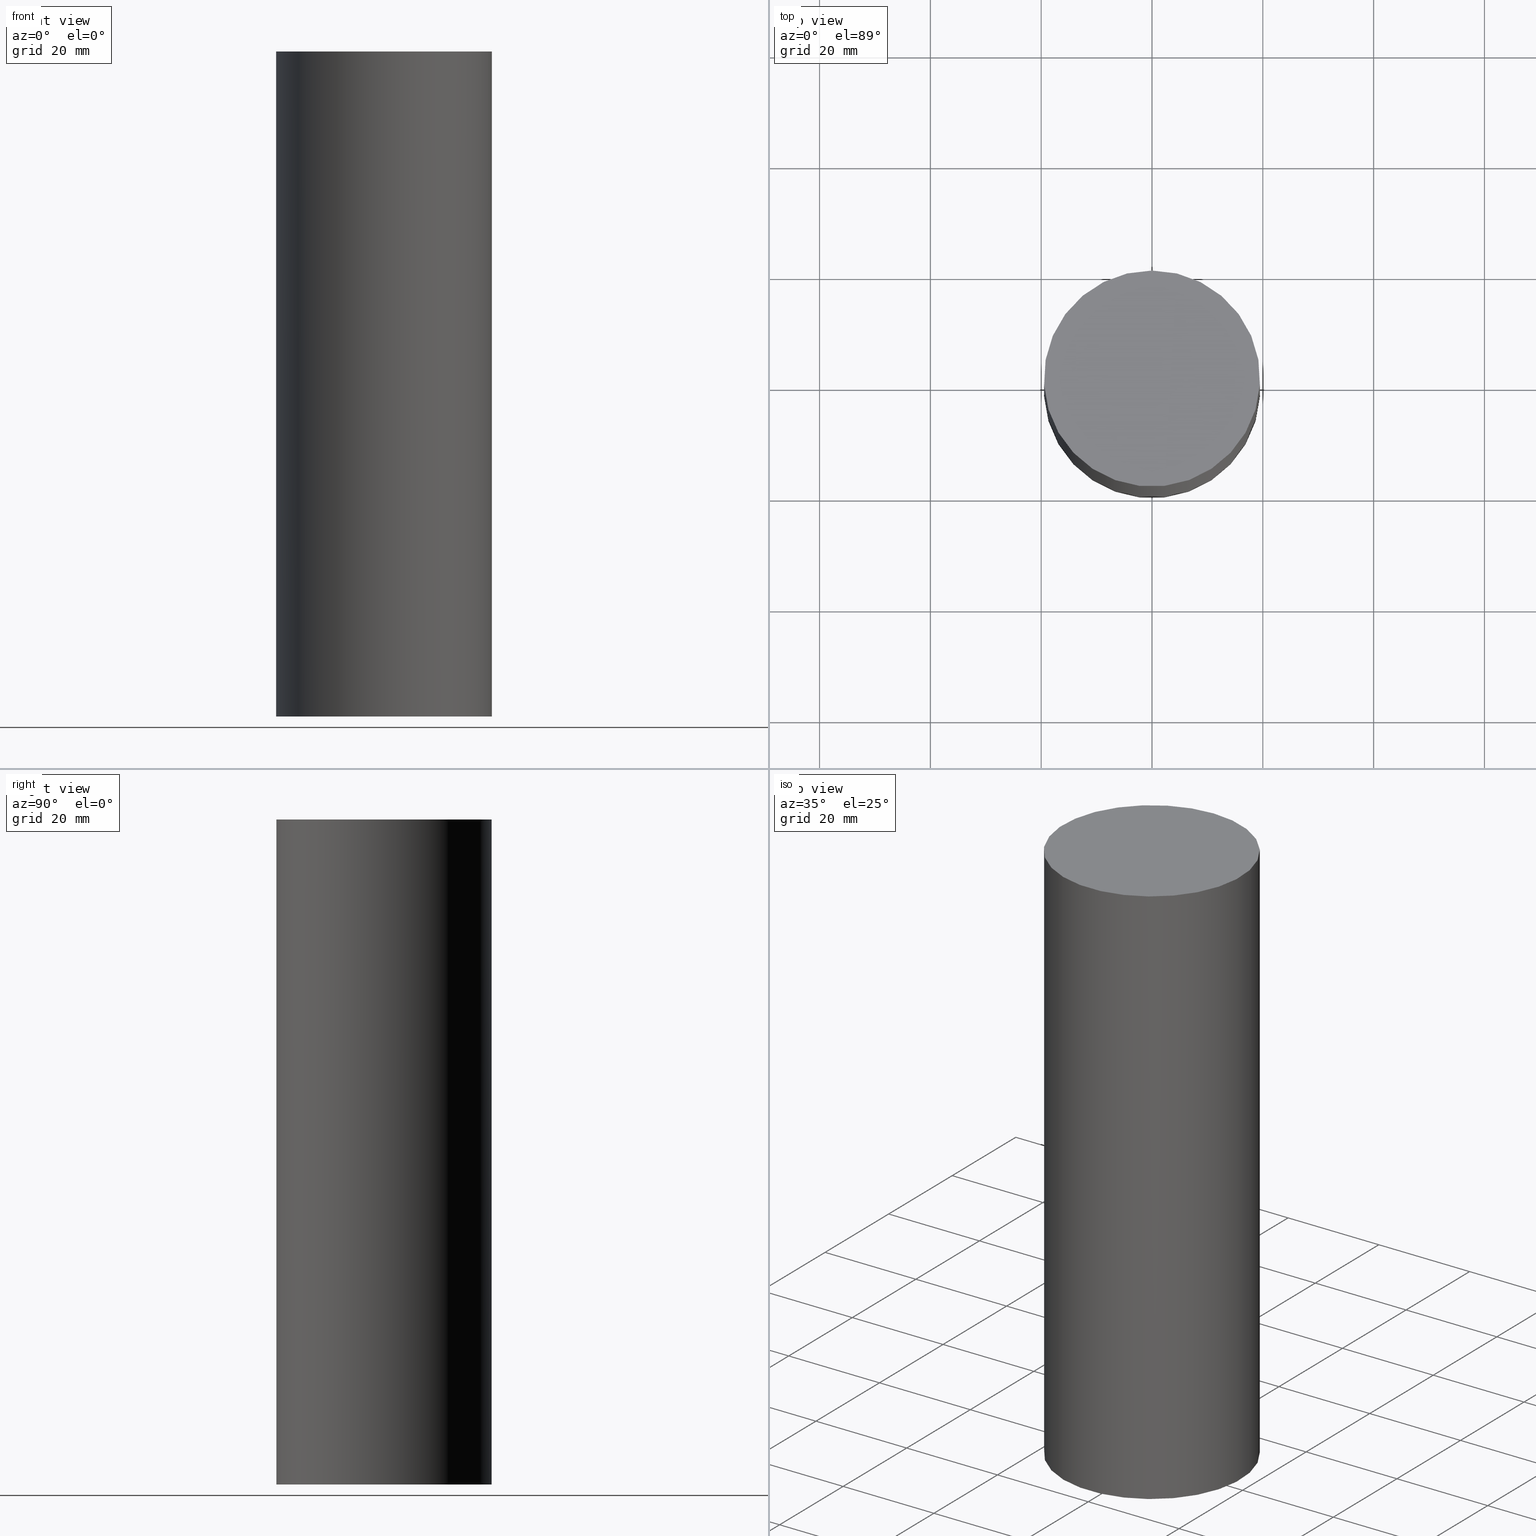
[diagram: canonical four-view strip — front | top / right | iso, engineering-drawing reading convention]
A machine part, canonical four-view strip (front | top / right | iso — engineering-drawing reading convention). The complete STEP part file that produces these views, byte-faithful:
ISO-10303-21;
HEADER;
FILE_DESCRIPTION((''),'1');
FILE_NAME('U:/Translate/11_3D_Field/02_Step_Field/21_CK\X2\30DC30FC30EA30F330B030B730B930C630E0\X0\/27_\X2\FF7DFF8FFF70FF84FF80FF9EFF9DFF8AFF9FFF70\X0\/CK44DP-120.stp','2013-07-29T07:13:53',(''),(''),'Spatial Interop R18','Kubotek KeyCreator V8.5.1 (14335)',' ');
FILE_SCHEMA(('CONFIG_CONTROL_DESIGN'));
ENDSEC;
DATA;
#1=DESIGN_CONTEXT('',#27,'design');
#2=APPLICATION_PROTOCOL_DEFINITION('INTERNATIONAL STANDARD','config_control_design',1994,#27);
#3=PRODUCT_CATEGORY_RELATIONSHIP('NONE','NONE',#28,#29);
#4=DATE_AND_TIME(#30,#31);
#5=DATE_TIME_ROLE('creation_date');
#6=DATE_TIME_ROLE('classification_date');
#7=PERSON_AND_ORGANIZATION_ROLE('creator');
#8=PERSON_AND_ORGANIZATION_ROLE('design_supplier');
#9=PERSON_AND_ORGANIZATION_ROLE('classification_officer');
#10=PERSON_AND_ORGANIZATION_ROLE('design_owner');
#11=APPROVAL_PERSON_ORGANIZATION(#32,#33,#34);
#12=APPROVAL_DATE_TIME(#4,#33);
#13=CC_DESIGN_APPROVAL(#33,(#35,#36,#37));
#14=CC_DESIGN_DATE_AND_TIME_ASSIGNMENT(#4,#5,(#37));
#15=CC_DESIGN_DATE_AND_TIME_ASSIGNMENT(#4,#6,(#35));
#16=CC_DESIGN_PERSON_AND_ORGANIZATION_ASSIGNMENT(#32,#10,(#38));
#17=CC_DESIGN_PERSON_AND_ORGANIZATION_ASSIGNMENT(#32,#7,(#37));
#18=CC_DESIGN_PERSON_AND_ORGANIZATION_ASSIGNMENT(#32,#7,(#36));
#19=CC_DESIGN_PERSON_AND_ORGANIZATION_ASSIGNMENT(#32,#8,(#36));
#20=CC_DESIGN_SECURITY_CLASSIFICATION(#35,(#36));
#21=CC_DESIGN_PERSON_AND_ORGANIZATION_ASSIGNMENT(#32,#9,(#35));
#22=SHAPE_DEFINITION_REPRESENTATION(#39,#40);
#23= (GEOMETRIC_REPRESENTATION_CONTEXT(3)GLOBAL_UNCERTAINTY_ASSIGNED_CONTEXT((#43))GLOBAL_UNIT_ASSIGNED_CONTEXT((#45,#46,#47))REPRESENTATION_CONTEXT('NONE','WORKSPACE'));
#27=APPLICATION_CONTEXT('CONFIGURATION CONTROLLED 3D DESIGNS OF MECHANICAL PARTS AND ASSEMBLIES');
#28=PRODUCT_CATEGORY('part','NONE');
#29=PRODUCT_RELATED_PRODUCT_CATEGORY('detail',' ',(#38));
#30=CALENDAR_DATE(2013,29,6);
#31=LOCAL_TIME(16,13,53.0,#49);
#32=PERSON_AND_ORGANIZATION(#50,#51);
#33=APPROVAL(#52,'SOLID MODEL');
#34=APPROVAL_ROLE('APPROVED');
#35=SECURITY_CLASSIFICATION('','',#53);
#36=PRODUCT_DEFINITION_FORMATION_WITH_SPECIFIED_SOURCE(' ','NONE',#38,.NOT_KNOWN.);
#37=PRODUCT_DEFINITION('NONE','NONE',#36,#1);
#38=PRODUCT('1','1','PART-1-DESC',(#54));
#39=PRODUCT_DEFINITION_SHAPE('NONE','NONE',#37);
#40=ADVANCED_BREP_SHAPE_REPRESENTATION('1',(#55,#56),#23);
#43=UNCERTAINTY_MEASURE_WITH_UNIT(LENGTH_MEASURE(1.0E-006),#45,'','');
#45= (CONVERSION_BASED_UNIT('MILLIMETRE',#59)LENGTH_UNIT()NAMED_UNIT(#62));
#46= (NAMED_UNIT(#64)PLANE_ANGLE_UNIT()SI_UNIT($,.RADIAN.));
#47= (NAMED_UNIT(#64)SOLID_ANGLE_UNIT()SI_UNIT($,.STERADIAN.));
#49=COORDINATED_UNIVERSAL_TIME_OFFSET(9,0,.AHEAD.);
#50=PERSON('','UNSPECIFIED',$,$,$,$);
#51=ORGANIZATION('UNSPECIFIED','UNSPECIFIED','UNSPECIFIED');
#52=APPROVAL_STATUS('approved');
#53=SECURITY_CLASSIFICATION_LEVEL('unclassified');
#54=MECHANICAL_CONTEXT('',#27,'mechanical');
#55=MANIFOLD_SOLID_BREP('1',#70);
#56=AXIS2_PLACEMENT_3D('',#71,#72,#73);
#59=LENGTH_MEASURE_WITH_UNIT(LENGTH_MEASURE(1.0),#74);
#62=DIMENSIONAL_EXPONENTS(1.0,0.0,0.0,0.0,0.0,0.0,0.0);
#64=DIMENSIONAL_EXPONENTS(0.0,0.0,0.0,0.0,0.0,0.0,0.0);
#70=CLOSED_SHELL('',(#75,#76,#77));
#71=CARTESIAN_POINT('',(0.0,0.0,0.0));
#72=DIRECTION('',(0.0,0.0,1.0));
#73=DIRECTION('',(1.0,0.0,0.0));
#74= (NAMED_UNIT(#62)LENGTH_UNIT()SI_UNIT(.MILLI.,.METRE.));
#75=ADVANCED_FACE('',(#79),#80,.T.);
#76=ADVANCED_FACE('',(#81,#82),#83,.T.);
#77=ADVANCED_FACE('',(#84),#85,.T.);
#79=FACE_OUTER_BOUND('',#86,.T.);
#80=PLANE('',#87);
#81=FACE_BOUND('',#88,.T.);
#82=FACE_BOUND('',#89,.T.);
#83=CYLINDRICAL_SURFACE('',#90,19.5);
#84=FACE_OUTER_BOUND('',#91,.T.);
#85=PLANE('',#92);
#86=EDGE_LOOP('',(#93));
#87=AXIS2_PLACEMENT_3D('',#94,#95,#96);
#88=EDGE_LOOP('',(#97));
#89=EDGE_LOOP('',(#98));
#90=AXIS2_PLACEMENT_3D('',#99,#100,#101);
#91=EDGE_LOOP('',(#102));
#92=AXIS2_PLACEMENT_3D('',#103,#104,#105);
#93=ORIENTED_EDGE('',*,*,#106,.F.);
#94=CARTESIAN_POINT('',(-1.20178028529764E-031,9.75,1.19403062916867E-015));
#95=DIRECTION('',(-6.12323399573677E-017,-1.22464679914735E-016,1.0));
#96=DIRECTION('',(1.23259516440783E-032,-1.0,-1.22464679914735E-016));
#97=ORIENTED_EDGE('',*,*,#107,.F.);
#98=ORIENTED_EDGE('',*,*,#106,.T.);
#99=CARTESIAN_POINT('',(3.67394039744206E-015,7.34788079488412E-015,-60.0));
#100=DIRECTION('',(-6.12323399573677E-017,-1.22464679914735E-016,1.0));
#101=DIRECTION('',(-1.23259516440783E-032,1.0,1.22464679914735E-016));
#102=ORIENTED_EDGE('',*,*,#107,.T.);
#103=CARTESIAN_POINT('',(7.34788079488412E-015,9.75000000000001,-120.0));
#104=DIRECTION('',(6.12323399573677E-017,1.22464679914735E-016,-1.0));
#105=DIRECTION('',(-1.23259516440783E-032,1.0,1.22464679914735E-016));
#106=EDGE_CURVE('',#108,#108,#109,.T.);
#107=EDGE_CURVE('',#110,#110,#111,.T.);
#108=VERTEX_POINT('',#112);
#109=CIRCLE('',#113,19.5);
#110=VERTEX_POINT('',#114);
#111=CIRCLE('',#115,19.5);
#112=CARTESIAN_POINT('',(-2.40356057059527E-031,19.5,2.38806125833734E-015));
#113=AXIS2_PLACEMENT_3D('',#116,#117,#118);
#114=CARTESIAN_POINT('',(7.34788079488412E-015,19.5,-120.0));
#115=AXIS2_PLACEMENT_3D('',#119,#120,#121);
#116=CARTESIAN_POINT('',(0.0,0.0,0.0));
#117=DIRECTION('',(6.12323399573677E-017,1.22464679914735E-016,-1.0));
#118=DIRECTION('',(-1.23259516440783E-032,1.0,1.22464679914735E-016));
#119=CARTESIAN_POINT('',(7.34788079488412E-015,1.46957615897682E-014,-120.0));
#120=DIRECTION('',(6.12323399573677E-017,1.22464679914735E-016,-1.0));
#121=DIRECTION('',(-1.23259516440783E-032,1.0,1.22464679914735E-016));
ENDSEC;
END-ISO-10303-21;
